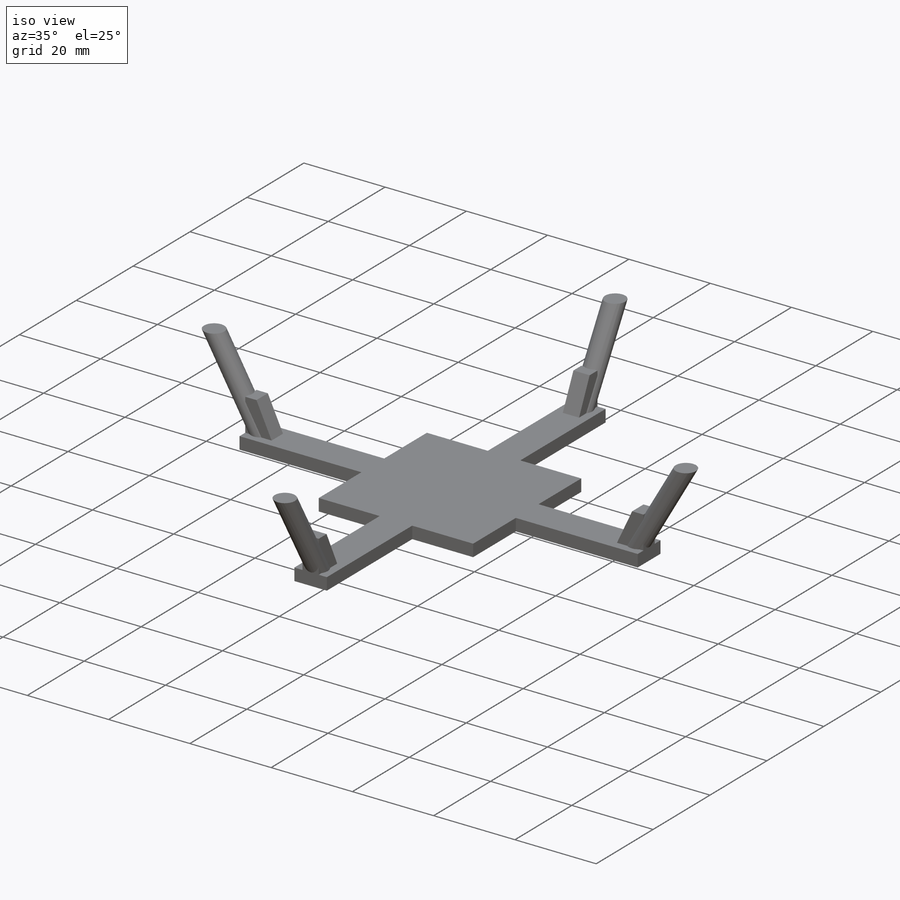
[diagram: iso view]
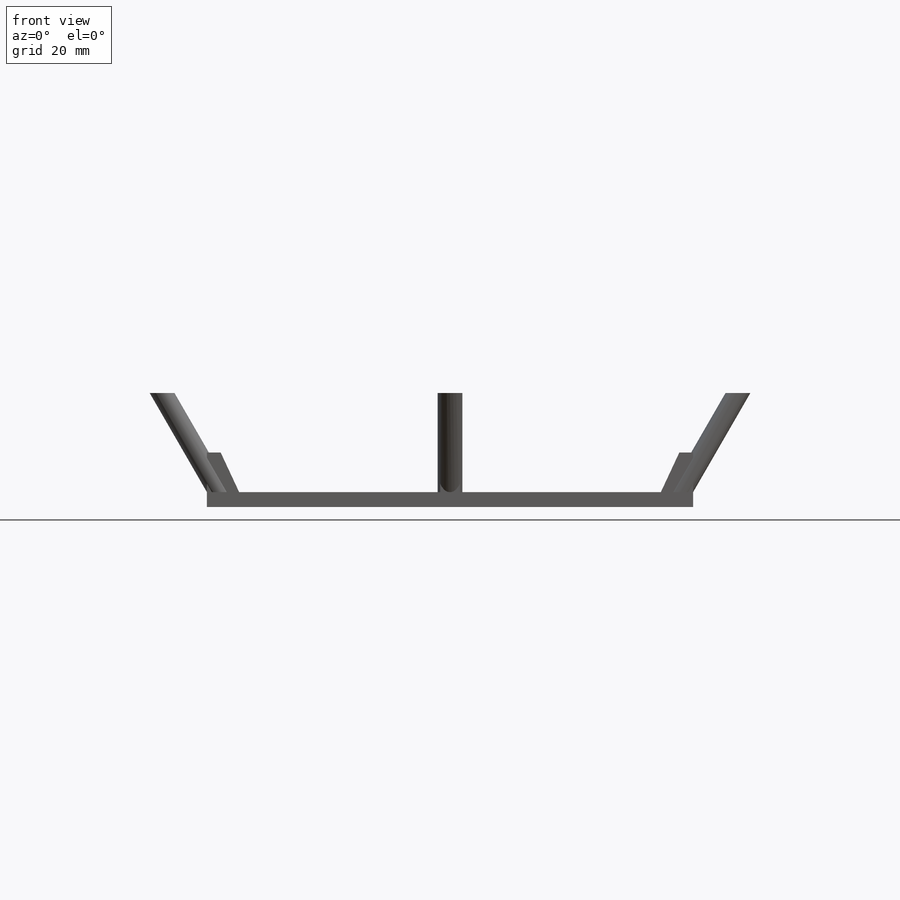
[diagram: front view]
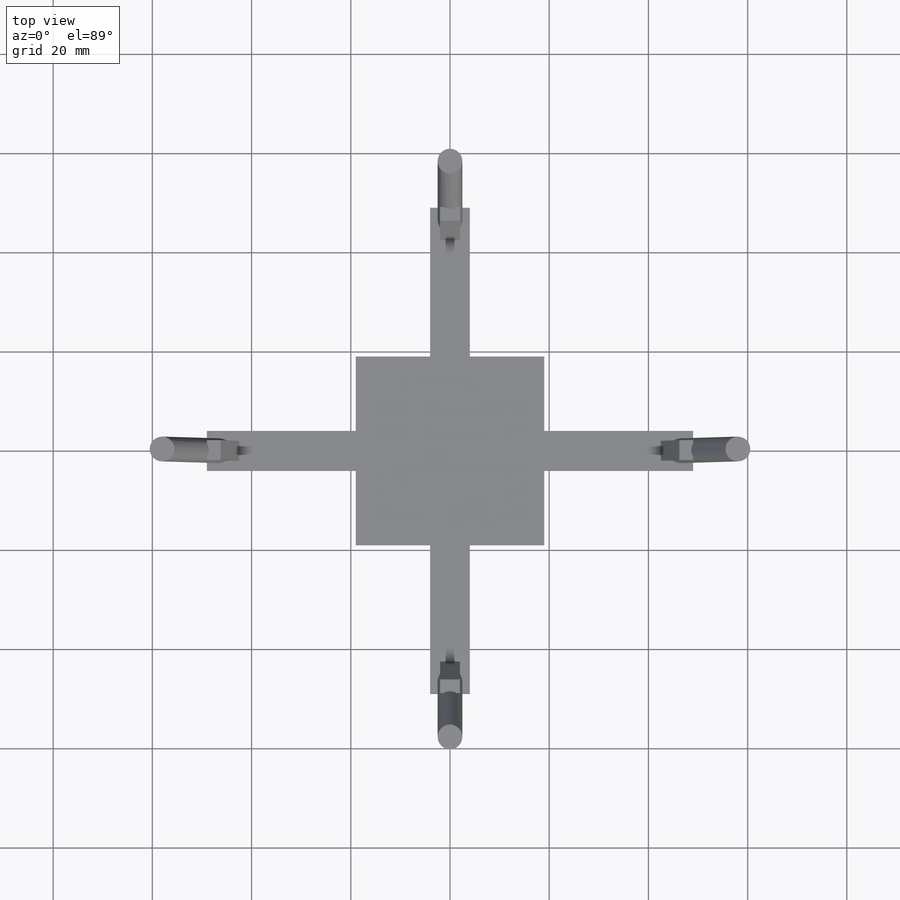
[diagram: top view]
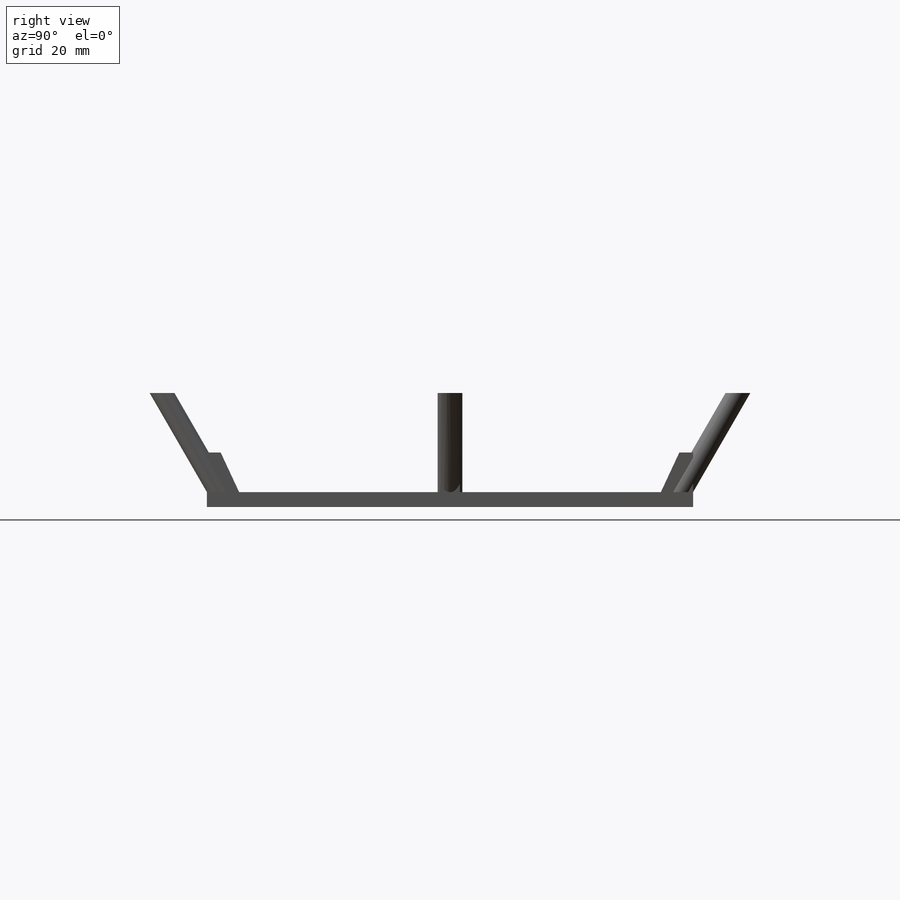
[diagram: right view]
SOLIDWORKS PART (.sldprt)
format: sldprt  version: not decoded by parser v0  size: 270,848 bytes
history: native  units: mm
features: sketch x6, extrude x4, material x1, sweep x1, pattern_circular x1 (+13 scaffold rows collapsed)
feature tree (26):
  scaffold x13  (default folders/planes/origin — collapsed)
  material  "Material <not specified>"
  sketch  "Sketch1"  dims[c1.D1=15.0mm c1.D2=3.0mm c1.D3=25.0mm c1.D4=15.0mm c2.D1=32.5mm c2.D3=~21.213203mm c3.D1=3.0mm c3.D2=6.0mm c3.D3=65.0mm c4.D2=7.5mm c4.D3=32.5mm c4.D4=7.5mm c4.D5=32.5mm c5.D2=1.5mm c5.D3=7.5mm c5.D4=32.5mm c5.D5=1.5mm c5.D6=7.5mm c5.D7=32.5mm c6.D2=32.5mm c6.D1=38.0mm]
  extrude  "Boss-Extrude1"  Depth=3mm
  sketch  "Sketch2"  dims[D1=8.0mm D2=30.0mm]
  extrude  "Boss-Extrude2"  [1 undecoded]
  sketch  "Sketch3"  dims[D1=5.0mm]
  extrude  "Boss-Extrude3"  Depth=20mm
  sketch  "Sketch7"  dims[c1.D1=20.0mm c2.D1=30.0deg c2.D2=46.5mm c2.D3=~3.46983mm c2.D4=~19.53017mm c3.D3=20.0mm c3.D4=3.0mm]
  sketch  "Sketch8"
  sweep  "Sweep1"
  sketch  "Sketch6"  dims[c1.D1=8.0mm c1.D2=4.0mm c1.D3=5.0mm c1.D4=2.5mm c2.D1=8.0mm c2.D5=~8.944272mm c3.D5=65.0deg c3.D3=2.5mm]
  extrude  "Boss-Extrude5"  Depth=4mm
  pattern_circular  "CirPattern1"  Count=4 Angle=360deg
decode coverage: 9 of 12 modeling features carry decoded parameters
note: ~ marks probable driven/reference dimensions
note: 1 parameter value undecoded
note: suppression state not decoded; provenance and decode notes live in map.json
